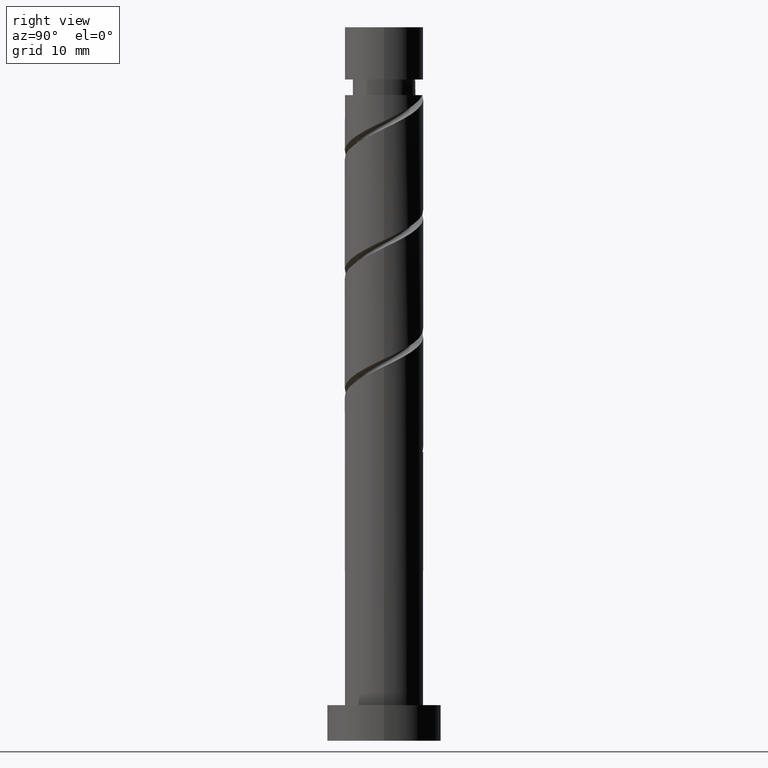
[diagram: clean part render]
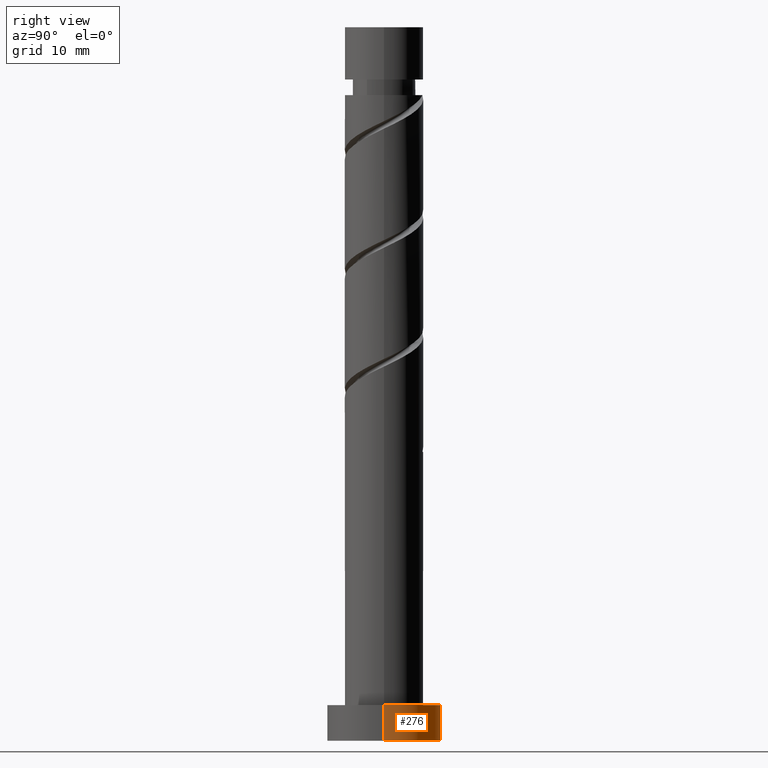
[diagram: same view with one face highlighted and labeled with its STEP entity id]
A machine part, right view. The second image highlights one B-rep face of the part: STEP entity #276.
In plain terms, the highlighted cylindrical surface (partial cylindrical patch) has radius 8 mm, axis along (-0, -0, -1).
Its self-contained STEP definition (entity closure, byte-faithful):
#28 = EDGE_LOOP ( 'NONE', ( #175, #629, #615, #491 ) ) ;
#106 = AXIS2_PLACEMENT_3D ( 'NONE', #1331, #774, #1223 ) ;
#118 = CARTESIAN_POINT ( 'NONE',  ( -8.000000000000000000, 0.000000000000000000, 5.000000000000000000 ) ) ;
#161 = CIRCLE ( 'NONE', #106, 8.000000000000000000 ) ;
#175 = ORIENTED_EDGE ( 'NONE', *, *, #724, .F. ) ;
#183 = VECTOR ( 'NONE', #1404, 1000.000000000000000 ) ;
#240 = CARTESIAN_POINT ( 'NONE',  ( -8.000000000000000000, 0.000000000000000000, 0.000000000000000000 ) ) ;
#263 = CARTESIAN_POINT ( 'NONE',  ( 8.000000000000000000, 9.797174393178825657E-16, 0.000000000000000000 ) ) ;
#276 = ADVANCED_FACE ( 'NONE', ( #444 ), #567, .T. ) ;
#290 = VERTEX_POINT ( 'NONE', #240 ) ;
#301 = AXIS2_PLACEMENT_3D ( 'NONE', #731, #1177, #608 ) ;
#346 = EDGE_CURVE ( 'NONE', #538, #290, #446, .T. ) ;
#404 = VERTEX_POINT ( 'NONE', #840 ) ;
#444 = FACE_OUTER_BOUND ( 'NONE', #28, .T. ) ;
#446 = CIRCLE ( 'NONE', #301, 8.000000000000000000 ) ;
#488 = CARTESIAN_POINT ( 'NONE',  ( 8.000000000000000000, 9.797174393178825657E-16, 5.000000000000000000 ) ) ;
#491 = ORIENTED_EDGE ( 'NONE', *, *, #1298, .F. ) ;
#524 = EDGE_CURVE ( 'NONE', #404, #538, #824, .T. ) ;
#538 = VERTEX_POINT ( 'NONE', #263 ) ;
#567 = CYLINDRICAL_SURFACE ( 'NONE', #1280, 8.000000000000000000 ) ;
#608 = DIRECTION ( 'NONE',  ( 1.000000000000000000, 0.000000000000000000, 0.000000000000000000 ) ) ;
#615 = ORIENTED_EDGE ( 'NONE', *, *, #346, .T. ) ;
#629 = ORIENTED_EDGE ( 'NONE', *, *, #524, .T. ) ;
#724 = EDGE_CURVE ( 'NONE', #404, #836, #161, .T. ) ;
#731 = CARTESIAN_POINT ( 'NONE',  ( 0.000000000000000000, 0.000000000000000000, 0.000000000000000000 ) ) ;
#774 = DIRECTION ( 'NONE',  ( 0.000000000000000000, 0.000000000000000000, 1.000000000000000000 ) ) ;
#804 = DIRECTION ( 'NONE',  ( -0.000000000000000000, -0.000000000000000000, -1.000000000000000000 ) ) ;
#812 = DIRECTION ( 'NONE',  ( -1.000000000000000000, 0.000000000000000000, 0.000000000000000000 ) ) ;
#824 = LINE ( 'NONE', #488, #183 ) ;
#836 = VERTEX_POINT ( 'NONE', #118 ) ;
#840 = CARTESIAN_POINT ( 'NONE',  ( 8.000000000000000000, 9.797174393178825657E-16, 5.000000000000000000 ) ) ;
#998 = CARTESIAN_POINT ( 'NONE',  ( -8.000000000000000000, 0.000000000000000000, 5.000000000000000000 ) ) ;
#1177 = DIRECTION ( 'NONE',  ( 0.000000000000000000, 0.000000000000000000, 1.000000000000000000 ) ) ;
#1180 = VECTOR ( 'NONE', #1329, 1000.000000000000000 ) ;
#1223 = DIRECTION ( 'NONE',  ( 1.000000000000000000, 0.000000000000000000, 0.000000000000000000 ) ) ;
#1272 = CARTESIAN_POINT ( 'NONE',  ( 0.000000000000000000, 0.000000000000000000, 5.000000000000000000 ) ) ;
#1280 = AXIS2_PLACEMENT_3D ( 'NONE', #1272, #804, #812 ) ;
#1298 = EDGE_CURVE ( 'NONE', #836, #290, #1460, .T. ) ;
#1329 = DIRECTION ( 'NONE',  ( -0.000000000000000000, -0.000000000000000000, -1.000000000000000000 ) ) ;
#1331 = CARTESIAN_POINT ( 'NONE',  ( 0.000000000000000000, 0.000000000000000000, 5.000000000000000000 ) ) ;
#1404 = DIRECTION ( 'NONE',  ( -0.000000000000000000, -0.000000000000000000, -1.000000000000000000 ) ) ;
#1460 = LINE ( 'NONE', #998, #1180 ) ;